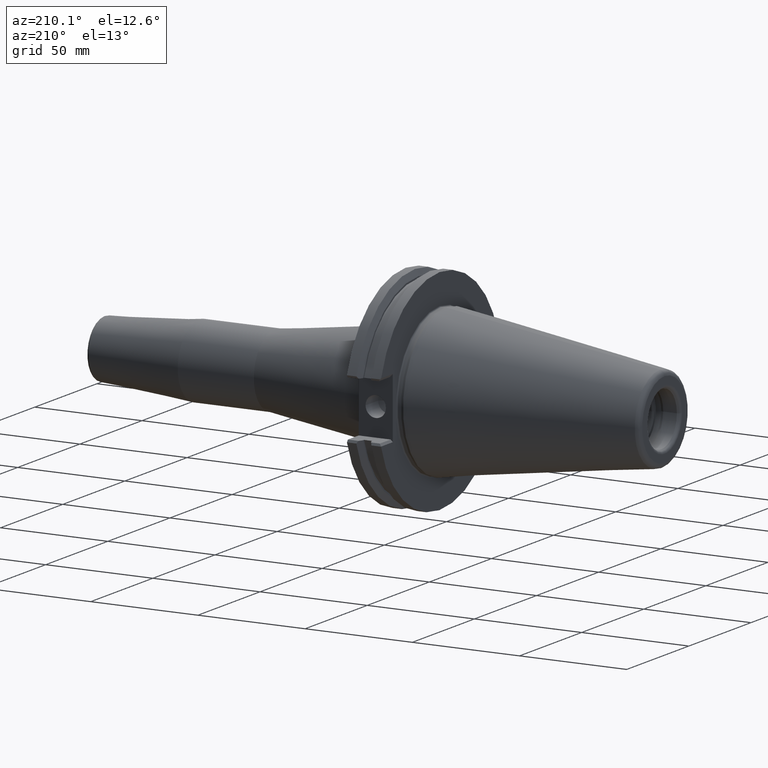
[diagram: clean part render]
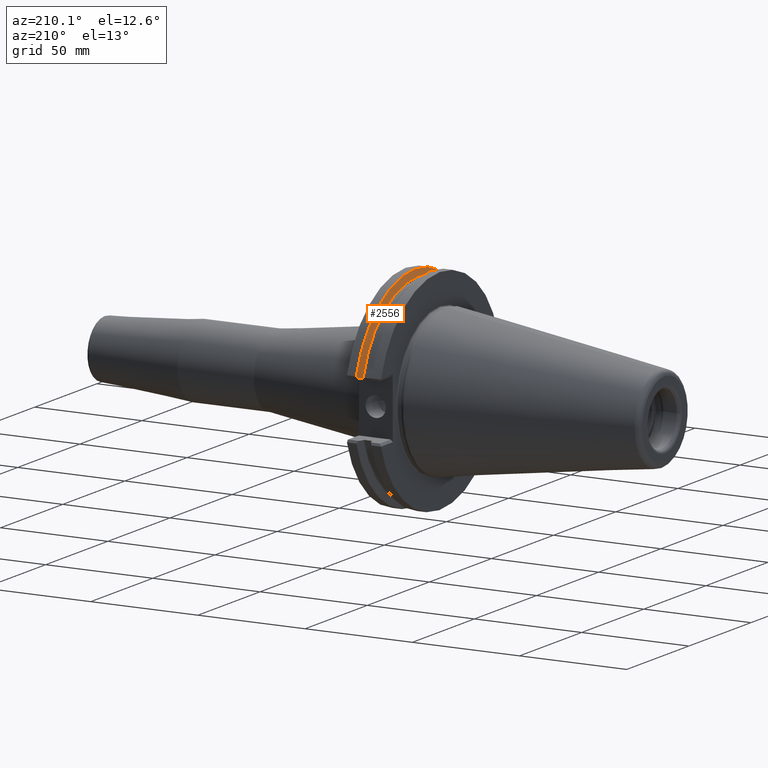
[diagram: same view with one face highlighted and labeled with its STEP entity id]
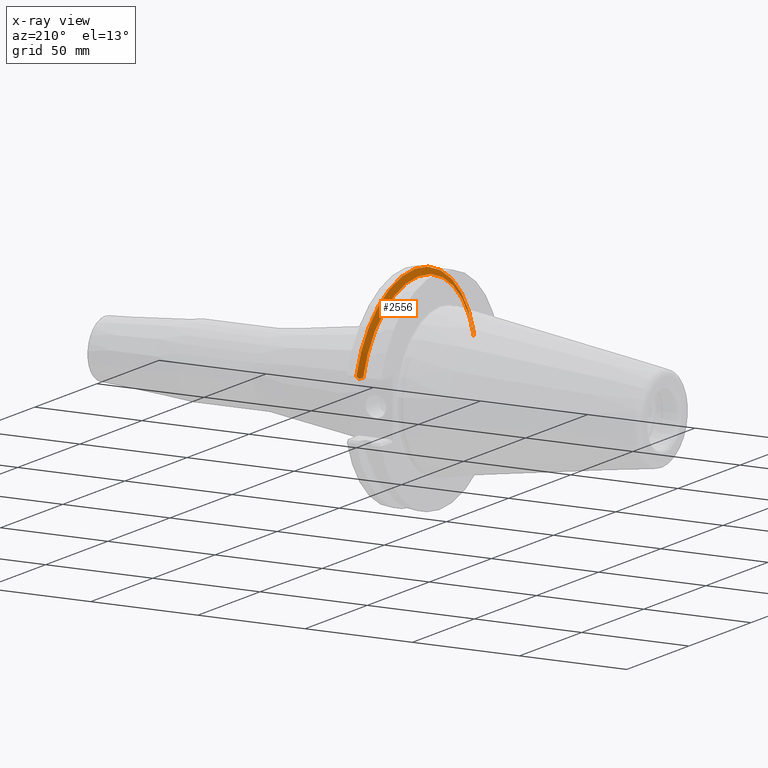
[diagram: x-ray of the same camera — body ghosted, the highlighted face saturated]
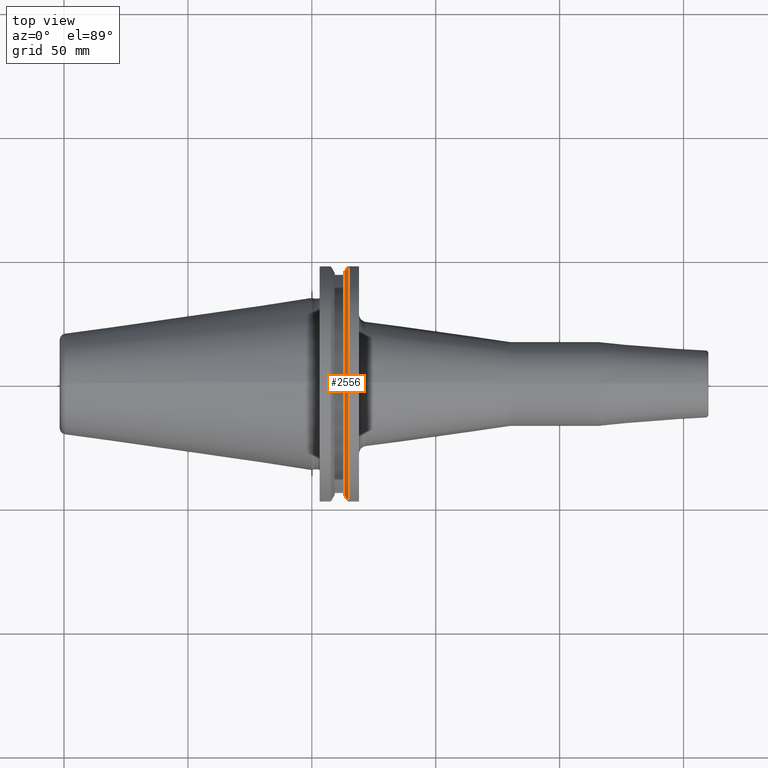
[diagram: same view with one face highlighted and labeled with its STEP entity id]
A machine part, auxiliary view. The second image highlights one B-rep face of the part: STEP entity #2556.
The next image is the same camera in x-ray: the body ghosted, the highlighted face saturated — about 2% of this face is hidden behind the body in this view.
A second angle (top view) of the same face is appended — the face is thin or edge-on in the first view.
In plain terms, the highlighted conical surface has half-angle 60 deg.
Its self-contained STEP definition (entity closure, byte-faithful):
#866=CARTESIAN_POINT('',(1.466616676908E1,4.721587600675E1,1.387556158017E1));
#867=CARTESIAN_POINT('',(1.456688637032E1,4.708718001878E1,1.370360288533E1));
#868=CARTESIAN_POINT('',(1.436950511031E1,4.683056143034E1,1.336071886666E1));
#869=CARTESIAN_POINT('',(1.417449588080E1,4.657548600677E1,1.301989676632E1));
#870=CARTESIAN_POINT('',(1.407758756395E1,4.644833319130E1,1.285E1));
#872=CARTESIAN_POINT('',(1.466616676908E1,0.E0,0.E0));
#873=DIRECTION('',(1.E0,0.E0,0.E0));
#874=DIRECTION('',(0.E0,9.594285193142E-1,2.819519752130E-1));
#875=AXIS2_PLACEMENT_3D('',#872,#873,#874);
#877=CARTESIAN_POINT('',(1.407758756395E1,-4.644833319130E1,1.285E1));
#878=CARTESIAN_POINT('',(1.417412090369E1,-4.657499400157E1,1.301923936764E1));
#879=CARTESIAN_POINT('',(1.436875130650E1,-4.682957847021E1,1.335940547263E1));
#880=CARTESIAN_POINT('',(1.456650762188E1,-4.708668905174E1,1.370294687380E1));
#881=CARTESIAN_POINT('',(1.466616676908E1,-4.721587600675E1,1.387556158017E1));
#883=CARTESIAN_POINT('',(1.304E1,-4.458090078979E1,1.285E1));
#884=CARTESIAN_POINT('',(1.321064932506E1,-4.488850759140E1,1.285E1));
#885=CARTESIAN_POINT('',(1.355423288212E1,-4.550735147942E1,1.285E1));
#886=CARTESIAN_POINT('',(1.390237730271E1,-4.613346089504E1,1.285E1));
#887=CARTESIAN_POINT('',(1.407758756395E1,-4.644833319130E1,1.285E1));
#889=CARTESIAN_POINT('',(1.304E1,0.E0,0.E0));
#890=DIRECTION('',(-1.E0,0.E0,0.E0));
#891=DIRECTION('',(0.E0,-9.608802527774E-1,2.769641489841E-1));
#892=AXIS2_PLACEMENT_3D('',#889,#890,#891);
#894=CARTESIAN_POINT('',(1.407758756395E1,4.644833319130E1,1.285E1));
#895=CARTESIAN_POINT('',(1.390240099833E1,4.613350347871E1,1.285E1));
#896=CARTESIAN_POINT('',(1.355428022047E1,4.550743667621E1,1.285E1));
#897=CARTESIAN_POINT('',(1.321067296587E1,4.488855020553E1,1.285E1));
#898=CARTESIAN_POINT('',(1.304E1,4.458090078979E1,1.285E1));
#1100=CARTESIAN_POINT('',(1.407758756395E1,4.644833319130E1,1.285E1));
#1102=VERTEX_POINT('',#1100);
#1105=CARTESIAN_POINT('',(1.466616676908E1,4.721587600675E1,1.387556158017E1));
#1106=VERTEX_POINT('',#1105);
#1111=CARTESIAN_POINT('',(1.407758756395E1,-4.644833319130E1,1.285E1));
#1112=VERTEX_POINT('',#1111);
#1113=CARTESIAN_POINT('',(1.466616676908E1,-4.721587600675E1,1.387556158017E1));
#1114=VERTEX_POINT('',#1113);
#1261=CARTESIAN_POINT('',(1.304E1,4.458090078979E1,1.285E1));
#1262=VERTEX_POINT('',#1261);
#1277=CARTESIAN_POINT('',(1.304E1,-4.458090078979E1,1.285E1));
#1278=VERTEX_POINT('',#1277);
#2539=CARTESIAN_POINT('',(1.385308338454E1,0.E0,0.E0));
#2540=DIRECTION('',(1.E0,0.E0,0.E0));
#2541=DIRECTION('',(0.E0,0.E0,1.E0));
#2542=AXIS2_PLACEMENT_3D('',#2539,#2540,#2541);
#2543=CONICAL_SURFACE('',#2542,4.780419826719E1,6.E1);
#2545=ORIENTED_EDGE('',*,*,#2544,.F.);
#2546=ORIENTED_EDGE('',*,*,#2486,.T.);
#2548=ORIENTED_EDGE('',*,*,#2547,.F.);
#2550=ORIENTED_EDGE('',*,*,#2549,.F.);
#2552=ORIENTED_EDGE('',*,*,#2551,.T.);
#2553=ORIENTED_EDGE('',*,*,#2367,.F.);
#2554=EDGE_LOOP('',(#2545,#2546,#2548,#2550,#2552,#2553));
#2555=FACE_OUTER_BOUND('',#2554,.F.);
#2556=ADVANCED_FACE('',(#2555),#2543,.T.);
#871=B_SPLINE_CURVE_WITH_KNOTS('',3,(#866,#867,#868,#869,#870),.UNSPECIFIED.,
.F.,.F.,(4,1,4),(0.E0,5.E-1,1.E0),.UNSPECIFIED.);
#876=CIRCLE('',#875,4.92125E1);
#882=B_SPLINE_CURVE_WITH_KNOTS('',3,(#877,#878,#879,#880,#881),.UNSPECIFIED.,
.F.,.F.,(4,1,4),(0.E0,5.E-1,1.E0),.UNSPECIFIED.);
#888=B_SPLINE_CURVE_WITH_KNOTS('',3,(#883,#884,#885,#886,#887),.UNSPECIFIED.,
.F.,.F.,(4,1,4),(0.E0,5.E-1,1.E0),.UNSPECIFIED.);
#893=CIRCLE('',#892,4.639589653438E1);
#899=B_SPLINE_CURVE_WITH_KNOTS('',3,(#894,#895,#896,#897,#898),.UNSPECIFIED.,
.F.,.F.,(4,1,4),(0.E0,5.E-1,1.E0),.UNSPECIFIED.);
#2367=EDGE_CURVE('',#1102,#1262,#899,.T.);
#2486=EDGE_CURVE('',#1106,#1114,#876,.T.);
#2544=EDGE_CURVE('',#1106,#1102,#871,.T.);
#2547=EDGE_CURVE('',#1112,#1114,#882,.T.);
#2549=EDGE_CURVE('',#1278,#1112,#888,.T.);
#2551=EDGE_CURVE('',#1278,#1262,#893,.T.);